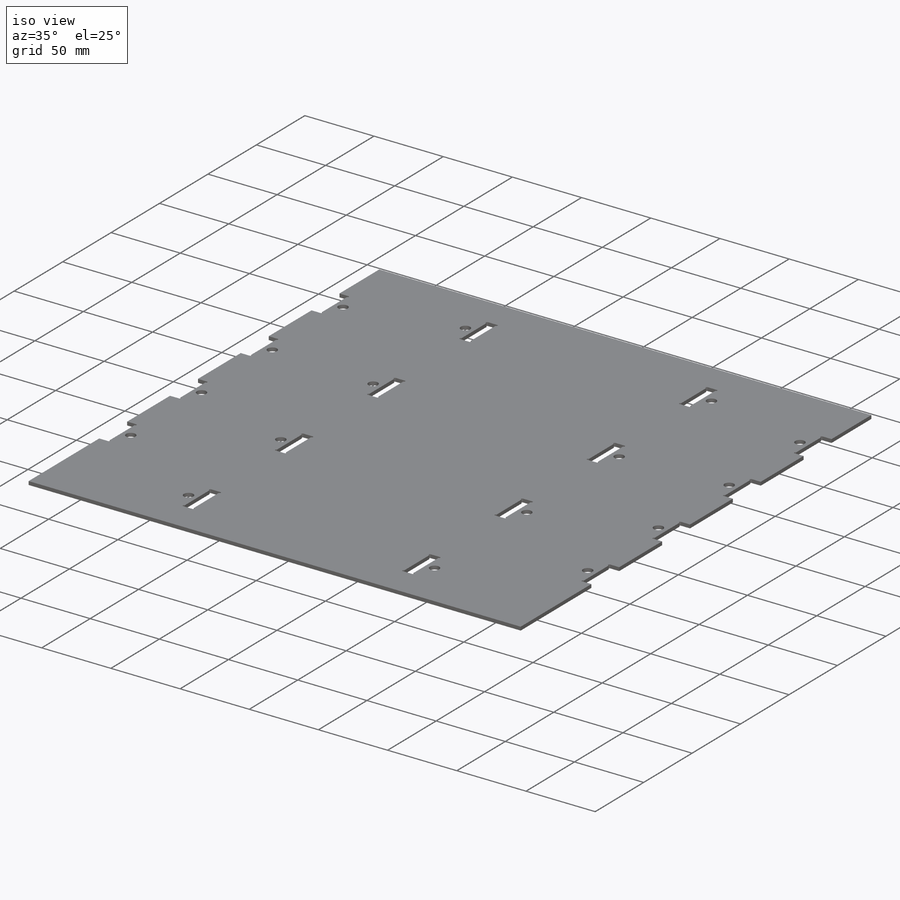
[diagram: iso view]
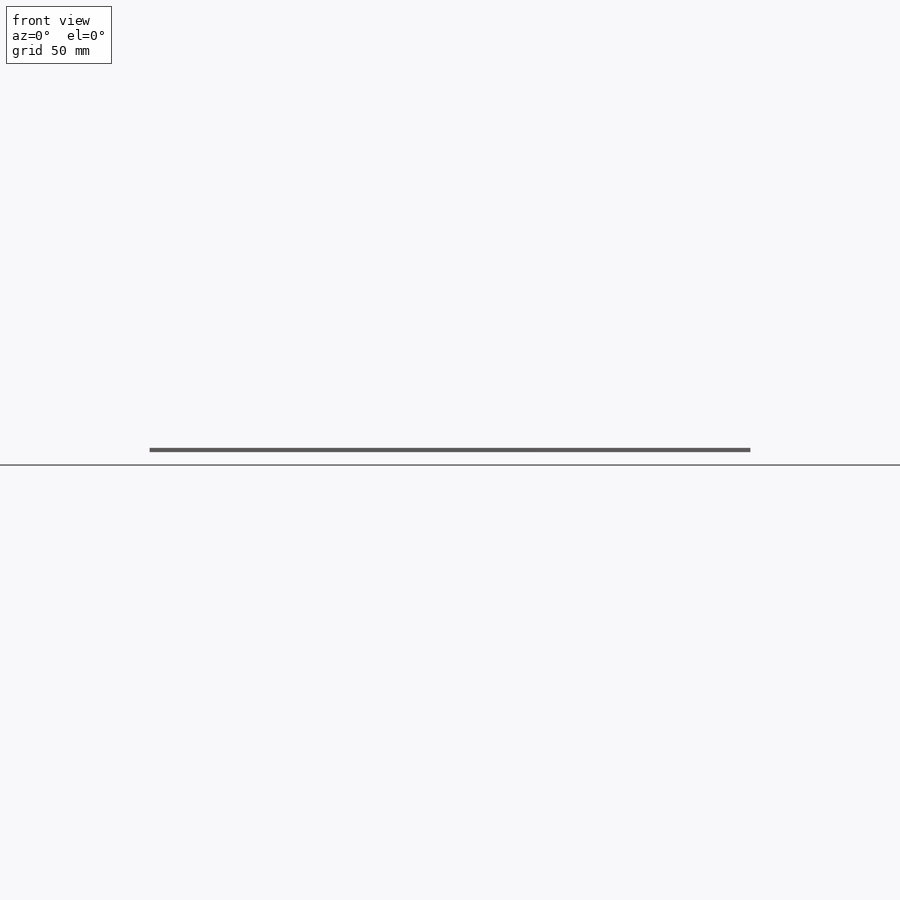
[diagram: front view]
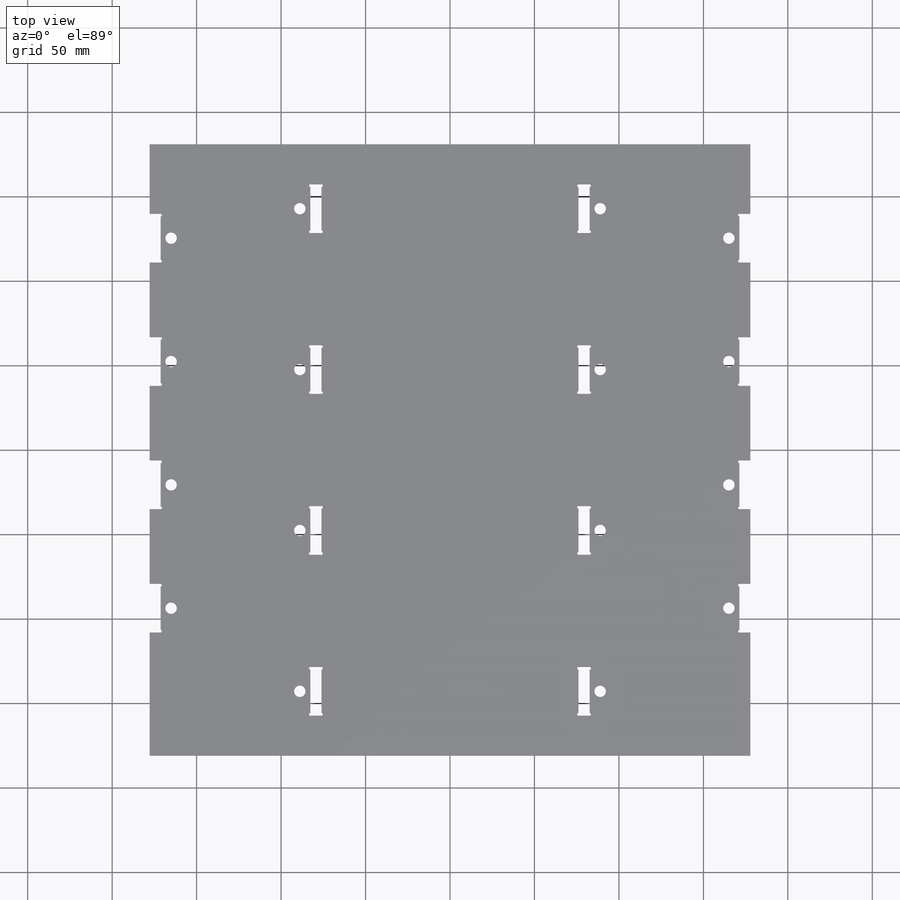
[diagram: top view]
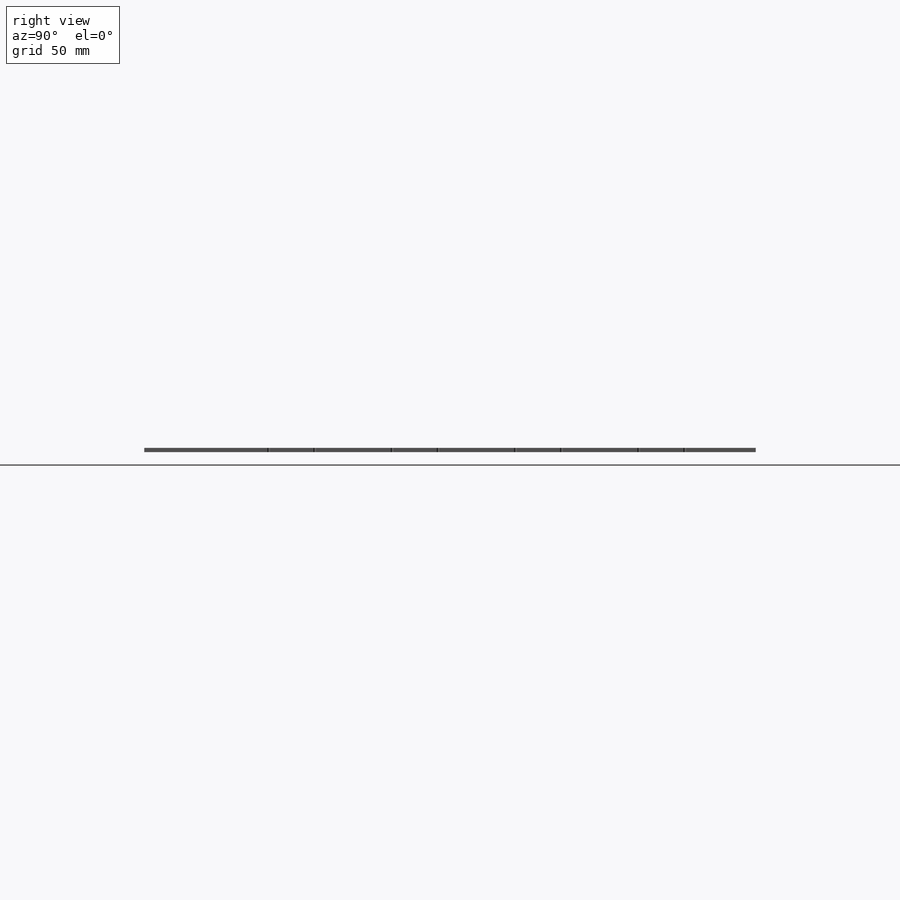
[diagram: right view]
SOLIDWORKS PART (.sldprt)
format: sldprt  version: not decoded by parser v0  size: 460,288 bytes
history: native  units: mm
features: sketch x5, cut_extrude x2, material x1, extrude x1, hole x1, mirror x1 (+13 scaffold rows collapsed)
feature tree (24):
  scaffold x13  (default folders/planes/origin — collapsed)
  material  "Ti-6Al-4VSolution treated and aged (SS)"
  sketch  "Sketch1"  dims[D1=177.8mm D2=180.975mm]
  extrude  "Boss-Extrude1"  Depth=2.54mm
  hole  "1/4 Clearance Hole1"  Diameter=6.7564mm Depth=2.54mm
  sketch  "Sketch7"
  sketch  "Sketch6"  dims[hole-wizard template sketch: 60 standard entries collapsed; hole parameters kept: c18.Thru Hole Depth=2.54mm]
  sketch  "Sketch9"  dims[c1.D1=~9.120833mm c1.D2=~6.846561mm c2.D1=~30.823354mm c2.D2=~10.688744mm c3.D1=~32.759782mm c3.D2=~10.688744mm c4.D1=~62.779046mm c4.D2=~11.768859mm c5.D1=~32.544765mm c5.D2=~10.688744mm c6.D1=~36.024394mm c6.D2=~8.877211mm c7.D1=~37.86655mm c7.D2=~7.239739mm c8.D1=~35.184289mm c8.D2=~7.239739mm c9.D1=~28.76402mm c9.D2=~7.239739mm c10.D1=0.127mm]
  cut_extrude  "Cut-Extrude1"  [1 undecoded]
  mirror  "Mirror1"
  sketch  "Sketch10"  dims[D1=1.5875mm D2=361.95mm]
  cut_extrude  "Cut-Extrude2"  [1 undecoded]
decode coverage: 6 of 10 modeling features carry decoded parameters
note: ~ marks probable driven/reference dimensions
note: 2 parameter values undecoded
note: suppression state not decoded; provenance and decode notes live in map.json
